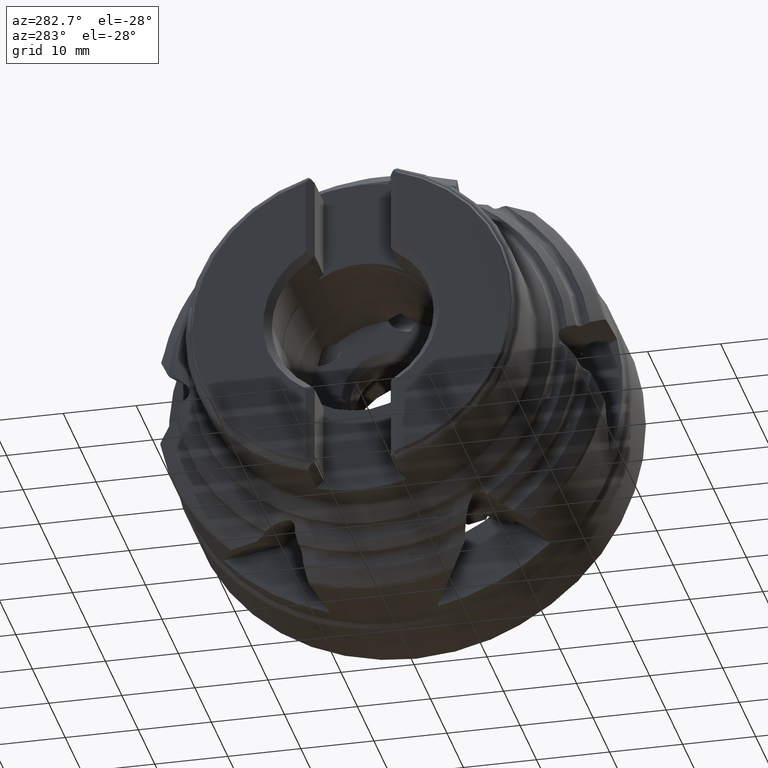
[diagram: clean part render]
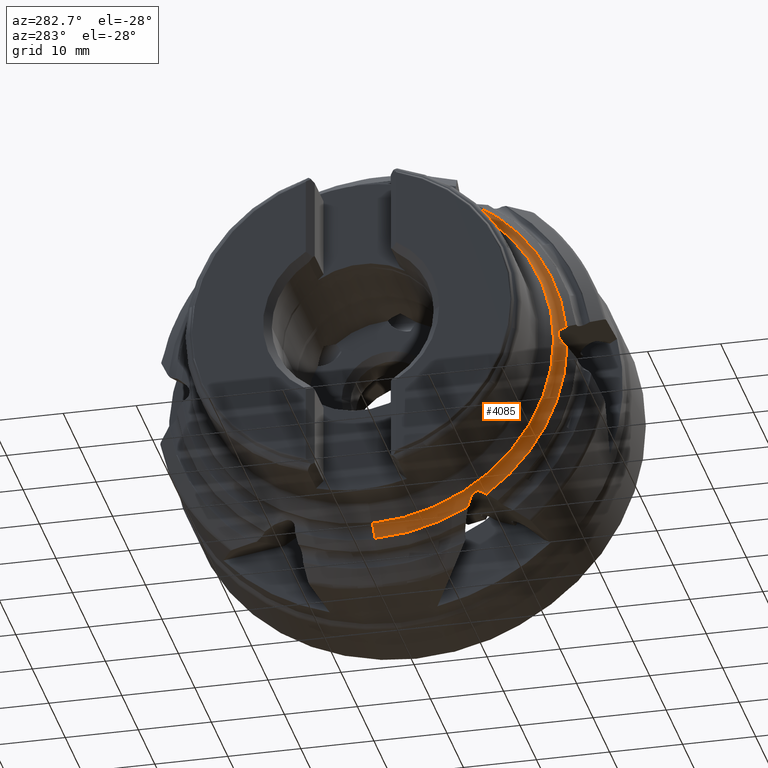
[diagram: same view with one face highlighted and labeled with its STEP entity id]
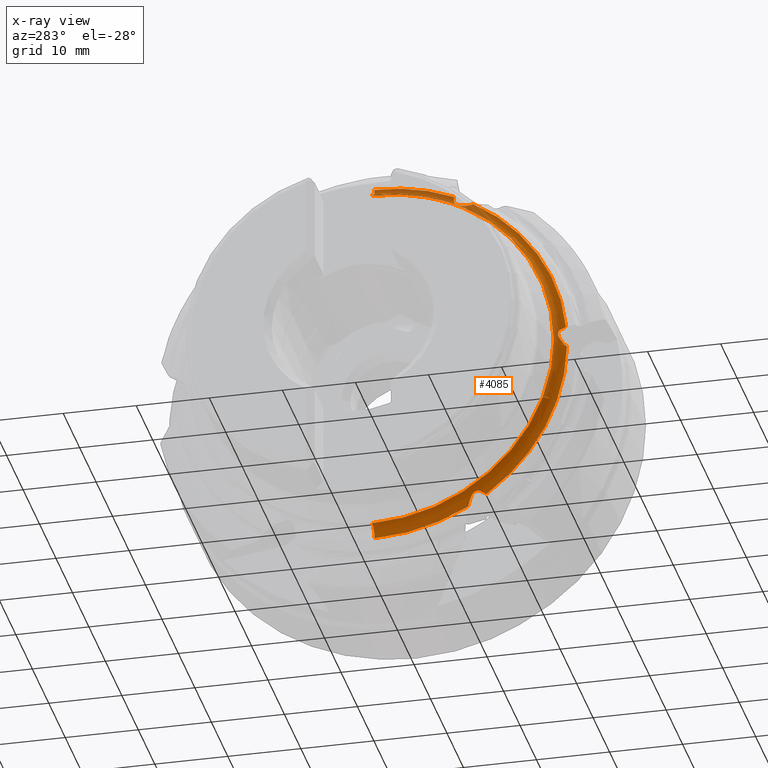
[diagram: x-ray of the same camera — body ghosted, the highlighted face saturated]
A machine part, auxiliary view. The second image highlights one B-rep face of the part: STEP entity #4085.
The next image is the same camera in x-ray: the body ghosted, the highlighted face saturated — about 9% of this face is hidden behind the body in this view.
In plain terms, the highlighted toroidal blend (fillet) surface has major radius 26.3549 mm and minor (blend) radius 1.5 mm.
Its self-contained STEP definition (entity closure, byte-faithful):
#1626 = EDGE_LOOP ( 'NONE', ( #2686, #2685, #2684, #2746, #2692, #2735, #2693, #2734, #2694, #2811, #2695, #2738, #2696, #2697, #2760, #2842 ) ) ;
#2684 = ORIENTED_EDGE ( 'NONE', *, *, #7962, .F. ) ;
#2685 = ORIENTED_EDGE ( 'NONE', *, *, #8030, .T. ) ;
#2686 = ORIENTED_EDGE ( 'NONE', *, *, #7912, .T. ) ;
#2692 = ORIENTED_EDGE ( 'NONE', *, *, #7942, .F. ) ;
#2693 = ORIENTED_EDGE ( 'NONE', *, *, #8025, .F. ) ;
#2694 = ORIENTED_EDGE ( 'NONE', *, *, #7878, .F. ) ;
#2695 = ORIENTED_EDGE ( 'NONE', *, *, #7918, .F. ) ;
#2696 = ORIENTED_EDGE ( 'NONE', *, *, #7898, .F. ) ;
#2697 = ORIENTED_EDGE ( 'NONE', *, *, #7969, .F. ) ;
#2734 = ORIENTED_EDGE ( 'NONE', *, *, #7884, .F. ) ;
#2735 = ORIENTED_EDGE ( 'NONE', *, *, #7175, .F. ) ;
#2738 = ORIENTED_EDGE ( 'NONE', *, *, #7950, .F. ) ;
#2746 = ORIENTED_EDGE ( 'NONE', *, *, #7184, .F. ) ;
#2760 = ORIENTED_EDGE ( 'NONE', *, *, #7932, .F. ) ;
#2811 = ORIENTED_EDGE ( 'NONE', *, *, #7893, .F. ) ;
#2842 = ORIENTED_EDGE ( 'NONE', *, *, #7956, .F. ) ;
#3241 = VERTEX_POINT ( 'NONE', #11593 ) ;
#3254 = VERTEX_POINT ( 'NONE', #11606 ) ;
#3267 = VERTEX_POINT ( 'NONE', #11619 ) ;
#3271 = VERTEX_POINT ( 'NONE', #11623 ) ;
#3292 = VERTEX_POINT ( 'NONE', #11644 ) ;
#3305 = VERTEX_POINT ( 'NONE', #11657 ) ;
#3306 = VERTEX_POINT ( 'NONE', #11658 ) ;
#3321 = VERTEX_POINT ( 'NONE', #11673 ) ;
#3352 = VERTEX_POINT ( 'NONE', #11704 ) ;
#3931 = VERTEX_POINT ( 'NONE', #5323 ) ;
#3946 = VERTEX_POINT ( 'NONE', #5336 ) ;
#3963 = VERTEX_POINT ( 'NONE', #5349 ) ;
#3986 = VERTEX_POINT ( 'NONE', #5362 ) ;
#4085 = ADVANCED_FACE ( 'NONE', ( #5968 ), #5973, .F. ) ;
#4137 = VERTEX_POINT ( 'NONE', #5607 ) ;
#4321 = VERTEX_POINT ( 'NONE', #8267 ) ;
#4523 = VERTEX_POINT ( 'NONE', #8649 ) ;
#5323 = CARTESIAN_POINT ( 'NONE',  ( -24.20151143756571700, -25.57458446331828500, 2.171185081221089300 ) ) ;
#5336 = CARTESIAN_POINT ( 'NONE',  ( -24.20151143756572100, -14.66759366831433600, -21.06264729585393200 ) ) ;
#5349 = CARTESIAN_POINT ( 'NONE',  ( -24.03428399164215500, -12.82082751631717300, -23.02218177535187800 ) ) ;
#5362 = CARTESIAN_POINT ( 'NONE',  ( -24.03428399164276600, -26.22534626032280900, 2.574040680852308000 ) ) ;
#5455 = DIRECTION ( 'NONE',  ( 1.000000000000000000, -0.0000000000000000000, -0.0000000000000000000 ) ) ;
#5456 = CARTESIAN_POINT ( 'NONE',  ( -25.53427991958032100, 0.0000000000000000000, 0.0000000000000000000 ) ) ;
#5458 = DIRECTION ( 'NONE',  ( 0.0000000000000000000, 0.0000000000000000000, -1.000000000000000000 ) ) ;
#5607 = CARTESIAN_POINT ( 'NONE',  ( -24.36246391146191200, -12.05164182616443500, 22.37981272764356400 ) ) ;
#5968 = FACE_OUTER_BOUND ( 'NONE', #1626, .T. ) ;
#5973 = TOROIDAL_SURFACE ( 'NONE', #7373, 26.35486081896872100, 1.499999999999998200 ) ;
#6963 = CIRCLE ( 'NONE', #9399, 26.35136565532230400 ) ;
#7150 = CIRCLE ( 'NONE', #9444, 26.35136565532230400 ) ;
#7172 = CIRCLE ( 'NONE', #9462, 1.499999999999997800 ) ;
#7175 = EDGE_CURVE ( 'NONE', #3946, #3271, #8142, .T. ) ;
#7184 = EDGE_CURVE ( 'NONE', #3963, #3306, #6963, .T. ) ;
#7228 = CIRCLE ( 'NONE', #9476, 26.35136565532230400 ) ;
#7235 = CIRCLE ( 'NONE', #9482, 26.35136565532230400 ) ;
#7240 = CIRCLE ( 'NONE', #9480, 1.499999999999997800 ) ;
#7373 = AXIS2_PLACEMENT_3D ( 'NONE', #5456, #5455, #5458 ) ;
#7878 = EDGE_CURVE ( 'NONE', #3321, #3292, #12219, .T. ) ;
#7884 = EDGE_CURVE ( 'NONE', #3292, #4321, #7150, .T. ) ;
#7893 = EDGE_CURVE ( 'NONE', #3931, #3321, #12221, .T. ) ;
#7898 = EDGE_CURVE ( 'NONE', #4137, #4523, #12224, .T. ) ;
#7912 = EDGE_CURVE ( 'NONE', #3305, #3352, #7172, .T. ) ;
#7918 = EDGE_CURVE ( 'NONE', #3986, #3931, #12228, .T. ) ;
#7932 = EDGE_CURVE ( 'NONE', #3267, #3241, #12236, .T. ) ;
#7942 = EDGE_CURVE ( 'NONE', #3271, #3963, #12240, .T. ) ;
#7950 = EDGE_CURVE ( 'NONE', #4523, #3986, #7228, .T. ) ;
#7956 = EDGE_CURVE ( 'NONE', #3305, #3267, #7235, .T. ) ;
#7962 = EDGE_CURVE ( 'NONE', #3306, #3254, #7240, .T. ) ;
#7969 = EDGE_CURVE ( 'NONE', #3241, #4137, #12250, .T. ) ;
#8025 = EDGE_CURVE ( 'NONE', #4321, #3946, #12271, .T. ) ;
#8030 = EDGE_CURVE ( 'NONE', #3352, #3254, #13075, .T. ) ;
#8142 = B_SPLINE_CURVE_WITH_KNOTS ( 'NONE', 3,
 ( #9905, #9928, #9929, #9930, #9931, #9932, #9933, #9934, #9935, #9936 ),
 .UNSPECIFIED., .F., .F.,
 ( 4, 2, 2, 2, 4 ),
 ( 0.0000000000000000000, 0.0004081521234690126300, 0.0008163042469380252700, 0.001224456370407038000, 0.001632608493876050500 ),
 .UNSPECIFIED. ) ;
#8267 = CARTESIAN_POINT ( 'NONE',  ( -24.03428399164276600, -15.34185775015404300, -21.42479574405666300 ) ) ;
#8649 = CARTESIAN_POINT ( 'NONE',  ( -24.03428399164215500, -13.52738050983916900, 22.61425321434522200 ) ) ;
#9399 = AXIS2_PLACEMENT_3D ( 'NONE', #9953, #9954, #9955 ) ;
#9444 = AXIS2_PLACEMENT_3D ( 'NONE', #10384, #10385, #10386 ) ;
#9462 = AXIS2_PLACEMENT_3D ( 'NONE', #10575, #10583, #10585 ) ;
#9476 = AXIS2_PLACEMENT_3D ( 'NONE', #10872, #10874, #10876 ) ;
#9480 = AXIS2_PLACEMENT_3D ( 'NONE', #10951, #10954, #10956 ) ;
#9482 = AXIS2_PLACEMENT_3D ( 'NONE', #10913, #10916, #10917 ) ;
#9509 = AXIS2_PLACEMENT_3D ( 'NONE', #12699, #12700, #12701 ) ;
#9905 = CARTESIAN_POINT ( 'NONE',  ( -24.20151143756572100, -14.66759366831433600, -21.06264729585393200 ) ) ;
#9928 = CARTESIAN_POINT ( 'NONE',  ( -24.25782664738877900, -14.55609243725779200, -21.00741100749072700 ) ) ;
#9929 = CARTESIAN_POINT ( 'NONE',  ( -24.31969538981302700, -14.43446800080119300, -20.98616589878751500 ) ) ;
#9930 = CARTESIAN_POINT ( 'NONE',  ( -24.42385033261781800, -14.18367463652945500, -21.00252064249385600 ) ) ;
#9931 = CARTESIAN_POINT ( 'NONE',  ( -24.46486928465072500, -14.05478603241273700, -21.04061428599041900 ) ) ;
#9932 = CARTESIAN_POINT ( 'NONE',  ( -24.50177338779275600, -13.81387411676586500, -21.15629483931280300 ) ) ;
#9933 = CARTESIAN_POINT ( 'NONE',  ( -24.49801906406272800, -13.69869004660917800, -21.23510238565307900 ) ) ;
#9934 = CARTESIAN_POINT ( 'NONE',  ( -24.45236578184781400, -13.50142490726345900, -21.41489569822947600 ) ) ;
#9935 = CARTESIAN_POINT ( 'NONE',  ( -24.41153359922853400, -13.41811621282799100, -21.51619662542335800 ) ) ;
#9936 = CARTESIAN_POINT ( 'NONE',  ( -24.36246391146190900, -13.35566544099531500, -21.62693434259132600 ) ) ;
#9953 = CARTESIAN_POINT ( 'NONE',  ( -24.03428399164215500, 0.0000000000000000000, 0.0000000000000000000 ) ) ;
#9954 = DIRECTION ( 'NONE',  ( 1.000000000000000000, -0.0000000000000000000, -0.0000000000000000000 ) ) ;
#9955 = DIRECTION ( 'NONE',  ( 0.0000000000000000000, 0.0000000000000000000, -1.000000000000000000 ) ) ;
#10356 = CARTESIAN_POINT ( 'NONE',  ( -24.36246391146190900, -25.40730726715985800, 0.7528783850522372500 ) ) ;
#10365 = CARTESIAN_POINT ( 'NONE',  ( -24.26913403865445700, -25.53032068385074600, 0.5447006357089685400 ) ) ;
#10366 = CARTESIAN_POINT ( 'NONE',  ( -24.18998163035903600, -25.66773737981974100, 0.3433312753948024000 ) ) ;
#10367 = CARTESIAN_POINT ( 'NONE',  ( -24.10241852268849500, -25.90050472895576300, 0.05233495572873354800 ) ) ;
#10368 = CARTESIAN_POINT ( 'NONE',  ( -24.07849323805236000, -25.98257010193663100, -0.04281412182965870600 ) ) ;
#10369 = CARTESIAN_POINT ( 'NONE',  ( -24.04453471512598700, -26.15737130638454400, -0.2291219127246959800 ) ) ;
#10370 = CARTESIAN_POINT ( 'NONE',  ( -24.03451419232845200, -26.25075116092207100, -0.3208183828083387400 ) ) ;
#10371 = CARTESIAN_POINT ( 'NONE',  ( -24.03428399164215500, -26.34820802615644900, -0.4079285610066559800 ) ) ;
#10384 = CARTESIAN_POINT ( 'NONE',  ( -24.03428399164215500, 0.0000000000000000000, 0.0000000000000000000 ) ) ;
#10385 = DIRECTION ( 'NONE',  ( 1.000000000000000000, -0.0000000000000000000, -0.0000000000000000000 ) ) ;
#10386 = DIRECTION ( 'NONE',  ( 0.0000000000000000000, 0.0000000000000000000, -1.000000000000000000 ) ) ;
#10409 = CARTESIAN_POINT ( 'NONE',  ( -24.20151143756571700, -25.57458446331828500, 2.171185081221089300 ) ) ;
#10421 = CARTESIAN_POINT ( 'NONE',  ( -24.25782664738877900, -25.47099781885671300, 2.102240326754486700 ) ) ;
#10422 = CARTESIAN_POINT ( 'NONE',  ( -24.31969538981301700, -25.39178679678527600, 2.007533029413711900 ) ) ;
#10423 = CARTESIAN_POINT ( 'NONE',  ( -24.42385033261781000, -25.28055373817147000, 1.782162233000651900 ) ) ;
#10424 = CARTESIAN_POINT ( 'NONE',  ( -24.46486928465072500, -25.24909949910385600, 1.651494605828978800 ) ) ;
#10425 = CARTESIAN_POINT ( 'NONE',  ( -24.50177338779274900, -25.22882583918144300, 1.385018490143221000 ) ) ;
#10426 = CARTESIAN_POINT ( 'NONE',  ( -24.49801906406272400, -25.23948314124367800, 1.245862386106107800 ) ) ;
#10427 = CARTESIAN_POINT ( 'NONE',  ( -24.45236578184781000, -25.29655614769254200, 0.9851291078634362200 ) ) ;
#10429 = CARTESIAN_POINT ( 'NONE',  ( -24.41153359922852700, -25.34263097685163800, 0.8623311985292632100 ) ) ;
#10431 = CARTESIAN_POINT ( 'NONE',  ( -24.36246391146190900, -25.40730726715985800, 0.7528783850522372500 ) ) ;
#10462 = CARTESIAN_POINT ( 'NONE',  ( -24.36246391146191200, -12.05164182616443500, 22.37981272764356400 ) ) ;
#10478 = CARTESIAN_POINT ( 'NONE',  ( -24.26913403865446000, -12.29343575394381300, 22.38225659683256600 ) ) ;
#10479 = CARTESIAN_POINT ( 'NONE',  ( -24.18998163035904300, -12.53653508350420300, 22.40057826628873600 ) ) ;
#10480 = CARTESIAN_POINT ( 'NONE',  ( -24.10241852268849500, -12.90492896331080500, 22.45666254397905700 ) ) ;
#10481 = CARTESIAN_POINT ( 'NONE',  ( -24.07849323805235300, -13.02836316811346300, 22.48015870297233900 ) ) ;
#10482 = CARTESIAN_POINT ( 'NONE',  ( -24.04453471512599100, -13.27711105017549000, 22.53838709118884200 ) ) ;
#10483 = CARTESIAN_POINT ( 'NONE',  ( -24.03451419232845200, -13.40321244997406300, 22.57340818237821600 ) ) ;
#10485 = CARTESIAN_POINT ( 'NONE',  ( -24.03428399164215500, -13.52738050983916900, 22.61425321434522200 ) ) ;
#10575 = CARTESIAN_POINT ( 'NONE',  ( -25.53427991958032100, 3.227539594392403200E-015, 26.35486081896872100 ) ) ;
#10583 = DIRECTION ( 'NONE',  ( 0.0000000000000000000, 1.000000000000000000, -1.224646799147353200E-016 ) ) ;
#10585 = DIRECTION ( 'NONE',  ( 0.0000000000000000000, 1.224646799147352200E-016, 1.000000000000000000 ) ) ;
#10606 = CARTESIAN_POINT ( 'NONE',  ( -24.03428399164276600, -26.22534626032280900, 2.574040680852308000 ) ) ;
#10616 = CARTESIAN_POINT ( 'NONE',  ( -24.03456311964805500, -26.11143844821391700, 2.508230677256290800 ) ) ;
#10618 = CARTESIAN_POINT ( 'NONE',  ( -24.04898751722702200, -25.99965902304191400, 2.441353967625440100 ) ) ;
#10620 = CARTESIAN_POINT ( 'NONE',  ( -24.10545367984404000, -25.78025565689171800, 2.305517900706767400 ) ) ;
#10622 = CARTESIAN_POINT ( 'NONE',  ( -24.14746184324493000, -25.67400371662112900, 2.237356121357084900 ) ) ;
#10624 = CARTESIAN_POINT ( 'NONE',  ( -24.20151143756571700, -25.57458446331828500, 2.171185081221089300 ) ) ;
#10721 = CARTESIAN_POINT ( 'NONE',  ( -24.03428399164276600, -10.88348851016865700, 23.99883642490895900 ) ) ;
#10737 = CARTESIAN_POINT ( 'NONE',  ( -24.03484165280234200, -10.88356688433350600, 23.73601265489814300 ) ) ;
#10739 = CARTESIAN_POINT ( 'NONE',  ( -24.09326068584141800, -10.89177714399932700, 23.47253682794124400 ) ) ;
#10740 = CARTESIAN_POINT ( 'NONE',  ( -24.20151143756572100, -10.90699079500384300, 23.23383237707501800 ) ) ;
#10809 = CARTESIAN_POINT ( 'NONE',  ( -24.36246391146190900, -13.35566544099531500, -21.62693434259132600 ) ) ;
#10817 = CARTESIAN_POINT ( 'NONE',  ( -24.26913403865445700, -13.23688492990681800, -21.83755596112358400 ) ) ;
#10818 = CARTESIAN_POINT ( 'NONE',  ( -24.18998163035903900, -13.13120229631542400, -22.05724699089394400 ) ) ;
#10820 = CARTESIAN_POINT ( 'NONE',  ( -24.10241852268849900, -12.99557576564484100, -22.40432758825033900 ) ) ;
#10822 = CARTESIAN_POINT ( 'NONE',  ( -24.07849323805235600, -12.95420693382305400, -22.52297282480200700 ) ) ;
#10824 = CARTESIAN_POINT ( 'NONE',  ( -24.04453471512598700, -12.88026025620894900, -22.76750900391353800 ) ) ;
#10826 = CARTESIAN_POINT ( 'NONE',  ( -24.03451419232845200, -12.84753871094791000, -22.89422656518656000 ) ) ;
#10828 = CARTESIAN_POINT ( 'NONE',  ( -24.03428399164215500, -12.82082751631717300, -23.02218177535187800 ) ) ;
#10872 = CARTESIAN_POINT ( 'NONE',  ( -24.03428399164215500, 0.0000000000000000000, 0.0000000000000000000 ) ) ;
#10874 = DIRECTION ( 'NONE',  ( 1.000000000000000000, -0.0000000000000000000, -0.0000000000000000000 ) ) ;
#10876 = DIRECTION ( 'NONE',  ( 0.0000000000000000000, 0.0000000000000000000, -1.000000000000000000 ) ) ;
#10913 = CARTESIAN_POINT ( 'NONE',  ( -24.03428399164215500, 0.0000000000000000000, 0.0000000000000000000 ) ) ;
#10916 = DIRECTION ( 'NONE',  ( 1.000000000000000000, -0.0000000000000000000, -0.0000000000000000000 ) ) ;
#10917 = DIRECTION ( 'NONE',  ( 0.0000000000000000000, 0.0000000000000000000, -1.000000000000000000 ) ) ;
#10951 = CARTESIAN_POINT ( 'NONE',  ( -25.53427991958032100, 0.0000000000000000000, -26.35486081896872100 ) ) ;
#10954 = DIRECTION ( 'NONE',  ( -0.0000000000000000000, -1.000000000000000000, -0.0000000000000000000 ) ) ;
#10956 = DIRECTION ( 'NONE',  ( 0.0000000000000000000, 0.0000000000000000000, -1.000000000000000000 ) ) ;
#11008 = CARTESIAN_POINT ( 'NONE',  ( -24.20151143756572100, -10.90699079500384300, 23.23383237707501800 ) ) ;
#11014 = CARTESIAN_POINT ( 'NONE',  ( -24.25782664738877500, -10.91490538159881600, 23.10965133424521100 ) ) ;
#11015 = CARTESIAN_POINT ( 'NONE',  ( -24.31969538981301700, -10.95731879598397300, 22.99369892820121600 ) ) ;
#11017 = CARTESIAN_POINT ( 'NONE',  ( -24.42385033261781800, -11.09687910164191200, 22.78468287549450000 ) ) ;
#11019 = CARTESIAN_POINT ( 'NONE',  ( -24.46486928465073200, -11.19431346669100300, 22.69210889181939100 ) ) ;
#11020 = CARTESIAN_POINT ( 'NONE',  ( -24.50177338779275600, -11.41495172241546800, 22.54131332945601300 ) ) ;
#11022 = CARTESIAN_POINT ( 'NONE',  ( -24.49801906406272400, -11.54079309463440400, 22.48096477175916900 ) ) ;
#11024 = CARTESIAN_POINT ( 'NONE',  ( -24.45236578184780300, -11.79513124042897800, 22.40002480609290500 ) ) ;
#11025 = CARTESIAN_POINT ( 'NONE',  ( -24.41153359922853000, -11.92451476402354000, 22.37852782395262400 ) ) ;
#11027 = CARTESIAN_POINT ( 'NONE',  ( -24.36246391146191200, -12.05164182616443500, 22.37981272764356400 ) ) ;
#11593 = CARTESIAN_POINT ( 'NONE',  ( -24.20151143756572100, -10.90699079500384300, 23.23383237707501800 ) ) ;
#11606 = CARTESIAN_POINT ( 'NONE',  ( -25.53427991958032100, 0.0000000000000000000, -24.85486081896872100 ) ) ;
#11619 = CARTESIAN_POINT ( 'NONE',  ( -24.03428399164276600, -10.88348851016865700, 23.99883642490895900 ) ) ;
#11623 = CARTESIAN_POINT ( 'NONE',  ( -24.36246391146190900, -13.35566544099531500, -21.62693434259132600 ) ) ;
#11644 = CARTESIAN_POINT ( 'NONE',  ( -24.03428399164215500, -26.34820802615644900, -0.4079285610066559800 ) ) ;
#11657 = CARTESIAN_POINT ( 'NONE',  ( -24.03428399164215500, 3.227111560295240500E-015, 26.35136565532267400 ) ) ;
#11658 = CARTESIAN_POINT ( 'NONE',  ( -24.03428399164215500, 0.0000000000000000000, -26.35136565532267400 ) ) ;
#11673 = CARTESIAN_POINT ( 'NONE',  ( -24.36246391146190900, -25.40730726715985800, 0.7528783850522372500 ) ) ;
#11704 = CARTESIAN_POINT ( 'NONE',  ( -25.53427991958032100, 3.043842574520300900E-015, 24.85486081896872100 ) ) ;
#12219 = B_SPLINE_CURVE_WITH_KNOTS ( 'NONE', 3,
 ( #10356, #10365, #10366, #10367, #10368, #10369, #10370, #10371 ),
 .UNSPECIFIED., .F., .F.,
 ( 4, 2, 2, 4 ),
 ( 4.906538933386797400E-018, 0.0007654783298572414500, 0.001148217494785864400, 0.001530956659714487000 ),
 .UNSPECIFIED. ) ;
#12221 = B_SPLINE_CURVE_WITH_KNOTS ( 'NONE', 3,
 ( #10409, #10421, #10422, #10423, #10424, #10425, #10426, #10427, #10429, #10431 ),
 .UNSPECIFIED., .F., .F.,
 ( 4, 2, 2, 2, 4 ),
 ( 4.336808689942017700E-019, 0.0004081521234690130100, 0.0008163042469380255900, 0.001224456370407038200, 0.001632608493876050800 ),
 .UNSPECIFIED. ) ;
#12224 = B_SPLINE_CURVE_WITH_KNOTS ( 'NONE', 3,
 ( #10462, #10478, #10479, #10480, #10481, #10482, #10483, #10485 ),
 .UNSPECIFIED., .F., .F.,
 ( 4, 2, 2, 4 ),
 ( 3.469446951953613800E-018, 0.0007654783298572528300, 0.001148217494785876300, 0.001530956659714499800 ),
 .UNSPECIFIED. ) ;
#12228 = B_SPLINE_CURVE_WITH_KNOTS ( 'NONE', 3,
 ( #10606, #10616, #10618, #10620, #10622, #10624 ),
 .UNSPECIFIED., .F., .F.,
 ( 4, 2, 4 ),
 ( 0.0001441725986659206800, 0.0005372570439230578700, 0.0009303414891801950500 ),
 .UNSPECIFIED. ) ;
#12236 = B_SPLINE_CURVE_WITH_KNOTS ( 'NONE', 3,
 ( #10721, #10737, #10739, #10740 ),
 .UNSPECIFIED., .F., .F.,
 ( 4, 4 ),
 ( 0.002556888241247094600, 0.003344447754128646200 ),
 .UNSPECIFIED. ) ;
#12240 = B_SPLINE_CURVE_WITH_KNOTS ( 'NONE', 3,
 ( #10809, #10817, #10818, #10820, #10822, #10824, #10826, #10828 ),
 .UNSPECIFIED., .F., .F.,
 ( 4, 2, 2, 4 ),
 ( 3.878959614448864200E-018, 0.0007654783298572419900, 0.001148217494785865500, 0.001530956659714489000 ),
 .UNSPECIFIED. ) ;
#12250 = B_SPLINE_CURVE_WITH_KNOTS ( 'NONE', 3,
 ( #11008, #11014, #11015, #11017, #11019, #11020, #11022, #11024, #11025, #11027 ),
 .UNSPECIFIED., .F., .F.,
 ( 4, 2, 2, 2, 4 ),
 ( 0.0000000000000000000, 0.0004081521234690126900, 0.0008163042469380253800, 0.001224456370407038000, 0.001632608493876050800 ),
 .UNSPECIFIED. ) ;
#12271 = B_SPLINE_CURVE_WITH_KNOTS ( 'NONE', 3,
 ( #12673, #12677, #12678, #12679 ),
 .UNSPECIFIED., .F., .F.,
 ( 4, 4 ),
 ( 0.002556888241247095900, 0.003344447754128646600 ),
 .UNSPECIFIED. ) ;
#12673 = CARTESIAN_POINT ( 'NONE',  ( -24.03428399164276600, -15.34185775015404300, -21.42479574405666300 ) ) ;
#12677 = CARTESIAN_POINT ( 'NONE',  ( -24.03484165280234200, -15.11420650152385600, -21.29345173306901600 ) ) ;
#12678 = CARTESIAN_POINT ( 'NONE',  ( -24.09326068584141800, -14.88192461226315700, -21.16882411303283000 ) ) ;
#12679 = CARTESIAN_POINT ( 'NONE',  ( -24.20151143756572100, -14.66759366831433600, -21.06264729585393200 ) ) ;
#12699 = CARTESIAN_POINT ( 'NONE',  ( -25.53427991958032100, 0.0000000000000000000, 0.0000000000000000000 ) ) ;
#12700 = DIRECTION ( 'NONE',  ( 1.000000000000000000, -0.0000000000000000000, -0.0000000000000000000 ) ) ;
#12701 = DIRECTION ( 'NONE',  ( 0.0000000000000000000, 0.0000000000000000000, -1.000000000000000000 ) ) ;
#13075 = CIRCLE ( 'NONE', #9509, 24.85486081896872100 ) ;